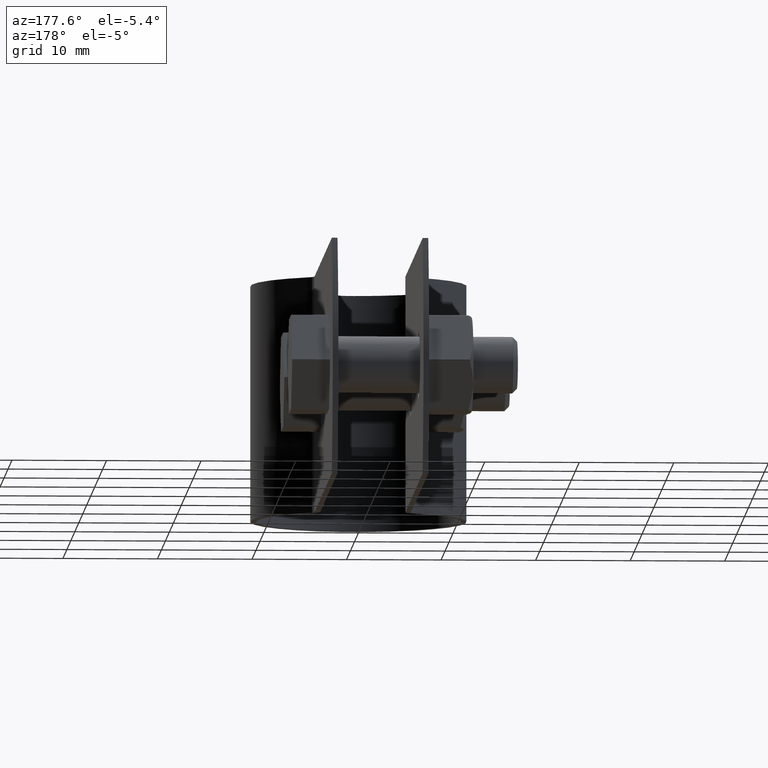
[diagram: clean part render]
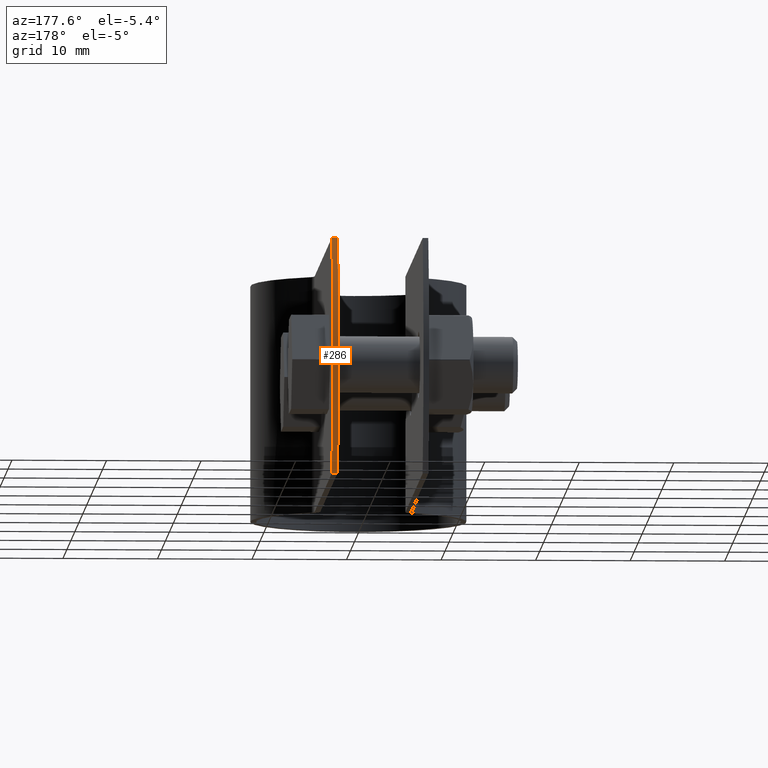
[diagram: same view with one face highlighted and labeled with its STEP entity id]
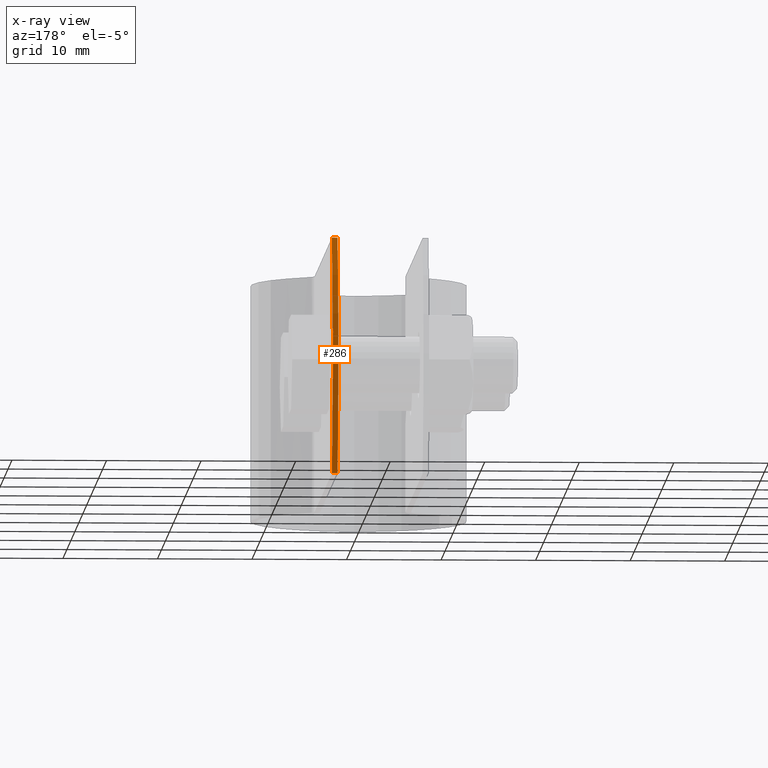
[diagram: x-ray of the same camera — body ghosted, the highlighted face saturated]
A machine part, auxiliary view. The second image highlights one B-rep face of the part: STEP entity #286.
The next image is the same camera in x-ray: the body ghosted, the highlighted face saturated — about 0% of this face is hidden behind the body in this view.
In plain terms, the highlighted cylindrical surface (partial cylindrical patch) has radius 35 mm, axis along (-1, 0, 0).
Its self-contained STEP definition (entity closure, byte-faithful):
#286 = ADVANCED_FACE( '', ( #412 ), #413, .T. );
#412 = FACE_OUTER_BOUND( '', #644, .T. );
#413 = CYLINDRICAL_SURFACE( '', #645, 35.0000000000000 );
#644 = EDGE_LOOP( '', ( #975, #976, #977, #978 ) );
#645 = AXIS2_PLACEMENT_3D( '', #979, #980, #981 );
#975 = ORIENTED_EDGE( '', *, *, #1684, .T. );
#976 = ORIENTED_EDGE( '', *, *, #1685, .F. );
#977 = ORIENTED_EDGE( '', *, *, #1620, .T. );
#978 = ORIENTED_EDGE( '', *, *, #1686, .T. );
#979 = CARTESIAN_POINT( '', ( -58.5538197479233, 21.8728162142319, 0.000000000000000 ) );
#980 = DIRECTION( '', ( -1.00000000000000, 6.06692130572647E-017, 5.15174468715762E-033 ) );
#981 = DIRECTION( '', ( 5.48151134602811E-017, 0.903507902905251, -0.428571428571428 ) );
#1620 = EDGE_CURVE( '', #1862, #1863, #1864, .F. );
#1684 = EDGE_CURVE( '', #1977, #1978, #1979, .T. );
#1685 = EDGE_CURVE( '', #1862, #1978, #1980, .T. );
#1686 = EDGE_CURVE( '', #1863, #1977, #1981, .T. );
#1862 = VERTEX_POINT( '', #2264 );
#1863 = VERTEX_POINT( '', #2265 );
#1864 = LINE( '', #2266, #2267 );
#1977 = VERTEX_POINT( '', #2497 );
#1978 = VERTEX_POINT( '', #2498 );
#1979 = LINE( '', #2499, #2500 );
#1980 = CIRCLE( '', #2501, 35.0000000000000 );
#1981 = CIRCLE( '', #2502, 35.0000000000000 );
#2264 = CARTESIAN_POINT( '', ( 5.10000000000000, 54.5645582907869, -12.5000000000000 ) );
#2265 = CARTESIAN_POINT( '', ( 4.50000000000000, 54.5645582907869, -12.5000000000000 ) );
#2266 = CARTESIAN_POINT( '', ( -58.5538197479233, 54.5645582907869, -12.5000000000000 ) );
#2267 = VECTOR( '', #2990, 1000.00000000000 );
#2497 = CARTESIAN_POINT( '', ( 4.50000000000000, 54.5645582907869, 12.5000000000000 ) );
#2498 = CARTESIAN_POINT( '', ( 5.10000000000000, 54.5645582907869, 12.5000000000000 ) );
#2499 = CARTESIAN_POINT( '', ( -58.5538197479233, 54.5645582907869, 12.5000000000000 ) );
#2500 = VECTOR( '', #3118, 1000.00000000000 );
#2501 = AXIS2_PLACEMENT_3D( '', #3119, #3120, #3121 );
#2502 = AXIS2_PLACEMENT_3D( '', #3122, #3123, #3124 );
#2990 = DIRECTION( '', ( 1.00000000000000, -6.06692130572647E-017, 0.000000000000000 ) );
#3118 = DIRECTION( '', ( 1.00000000000000, -6.06692130572647E-017, 0.000000000000000 ) );
#3119 = CARTESIAN_POINT( '', ( 5.10000000000000, 21.8728162142319, 0.000000000000000 ) );
#3120 = DIRECTION( '', ( 1.00000000000000, -6.06692130572647E-017, 0.000000000000000 ) );
#3121 = DIRECTION( '', ( 6.06692130572647E-017, 1.00000000000000, 0.000000000000000 ) );
#3122 = CARTESIAN_POINT( '', ( 4.50000000000000, 21.8728162142319, 0.000000000000000 ) );
#3123 = DIRECTION( '', ( 1.00000000000000, -6.06692130572647E-017, 0.000000000000000 ) );
#3124 = DIRECTION( '', ( 6.06692130572647E-017, 1.00000000000000, 0.000000000000000 ) );